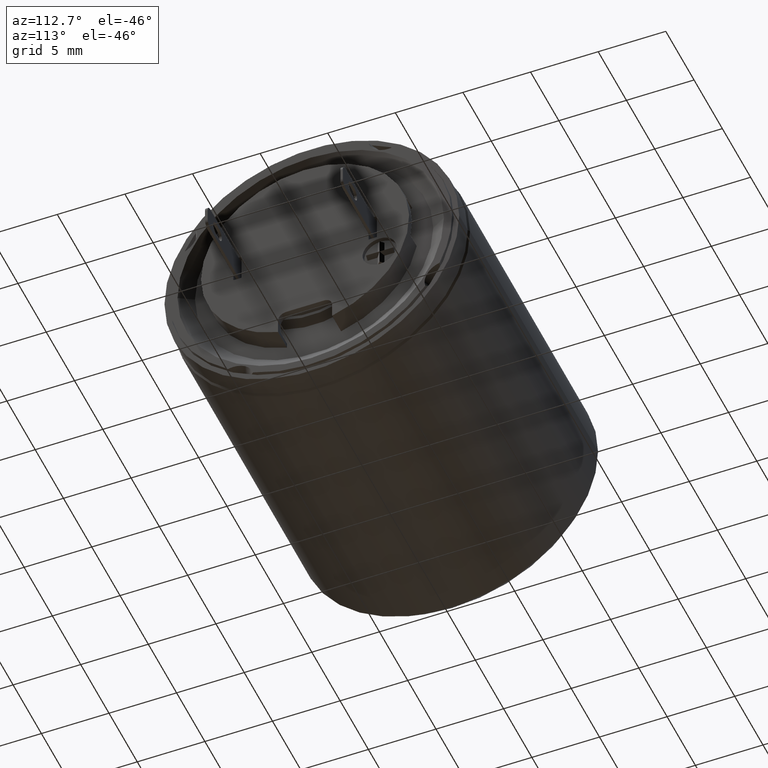
[diagram: clean part render]
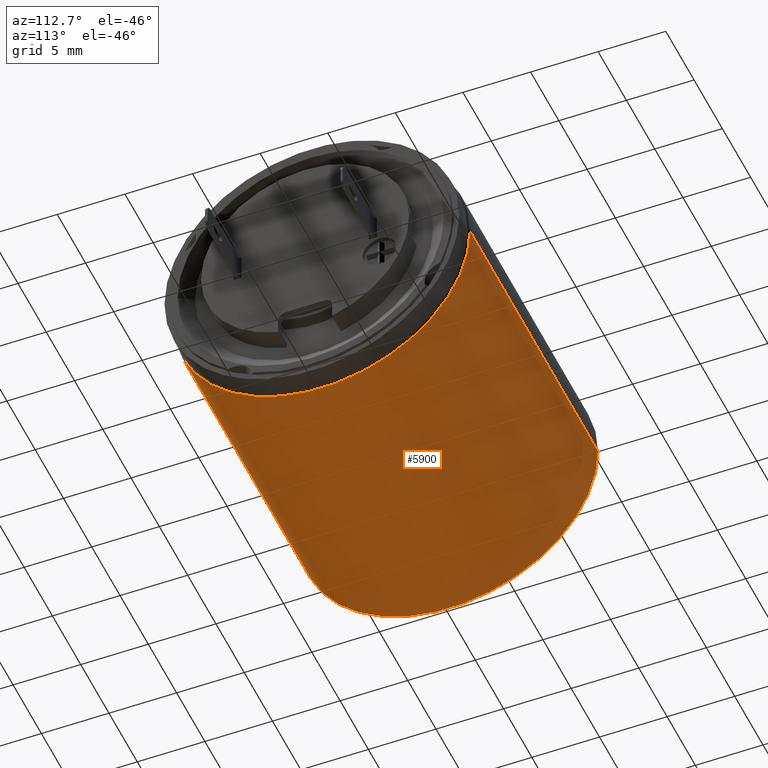
[diagram: same view with one face highlighted and labeled with its STEP entity id]
A machine part, auxiliary view. The second image highlights one B-rep face of the part: STEP entity #5900.
In plain terms, the highlighted cylindrical surface (partial cylindrical patch) has radius 11 mm, axis along (-1, 0, 0).
Its self-contained STEP definition (entity closure, byte-faithful):
#412=CARTESIAN_POINT('',(6.3E0,1.147494050803E-14,0.E0));
#413=DIRECTION('',(-1.E0,0.E0,0.E0));
#414=DIRECTION('',(0.E0,-9.800494599810E-1,-1.987537571746E-1));
#415=AXIS2_PLACEMENT_3D('',#412,#413,#414);
#417=DIRECTION('',(1.E0,-6.033666363858E-12,-1.401118055987E-10));
#418=VECTOR('',#417,9.267949192431E-1);
#419=CARTESIAN_POINT('',(6.3E0,-1.099999999999E1,3.170326124808E-10));
#420=LINE('',#419,#418);
#421=CARTESIAN_POINT('',(7.226794919243E0,1.136144086489E-14,0.E0));
#422=DIRECTION('',(1.E0,0.E0,0.E0));
#423=DIRECTION('',(0.E0,-1.E0,6.806498663983E-11));
#424=AXIS2_PLACEMENT_3D('',#421,#422,#423);
#426=DIRECTION('',(-1.E0,-5.617945267153E-13,-1.924549042033E-11));
#427=VECTOR('',#426,2.262679491926E1);
#428=CARTESIAN_POINT('',(7.226794919243E0,1.1E1,0.E0));
#429=LINE('',#428,#427);
#430=CARTESIAN_POINT('',(-1.54E1,1.413242406229E-14,0.E0));
#431=DIRECTION('',(-1.E0,0.E0,0.E0));
#432=DIRECTION('',(0.E0,1.E0,0.E0));
#433=AXIS2_PLACEMENT_3D('',#430,#431,#432);
#435=DIRECTION('',(1.E0,-7.103337525973E-12,-2.415448619505E-10));
#436=VECTOR('',#435,1.700000000012E0);
#437=CARTESIAN_POINT('',(-1.540000000001E1,-1.099999999999E1,
4.354631287217E-10));
#438=LINE('',#437,#436);
#439=CARTESIAN_POINT('',(-1.37E1,1.392423410643E-14,0.E0));
#440=DIRECTION('',(-1.E0,0.E0,0.E0));
#441=DIRECTION('',(0.E0,-9.800494599810E-1,-1.987537571746E-1));
#442=AXIS2_PLACEMENT_3D('',#439,#440,#441);
#444=CARTESIAN_POINT('',(-1.37E1,-1.078054401027E1,-2.186291572366E0));
#445=CARTESIAN_POINT('',(-1.37E1,-1.077303840707E1,-2.223301488091E0));
#446=CARTESIAN_POINT('',(-1.369122777280E1,-1.075805160692E1,
-2.295270795702E0));
#447=CARTESIAN_POINT('',(-1.365396774176E1,-1.073532049370E1,
-2.399247362835E0));
#448=CARTESIAN_POINT('',(-1.359445422115E1,-1.071393522627E1,
-2.492829306671E0));
#449=CARTESIAN_POINT('',(-1.351472409723E1,-1.069553040360E1,
-2.570456608253E0));
#450=CARTESIAN_POINT('',(-1.341888911486E1,-1.068141639113E1,
-2.628328697791E0));
#451=CARTESIAN_POINT('',(-1.331201966995E1,-1.067235325417E1,
-2.664782441758E0));
#452=CARTESIAN_POINT('',(-1.323805207597E1,-1.067019286007E1,
-2.673384433526E0));
#453=CARTESIAN_POINT('',(-1.320000004937E1,-1.067019286007E1,
-2.673384433526E0));
#455=DIRECTION('',(-1.E0,4.641152885953E-12,1.141402743809E-12));
#456=VECTOR('',#455,1.900000029915E1);
#457=CARTESIAN_POINT('',(5.800000249776E0,-1.067019286016E1,-2.673384433548E0));
#458=LINE('',#457,#456);
#459=CARTESIAN_POINT('',(5.800000249776E0,-1.067019286016E1,-2.673384433548E0));
#460=CARTESIAN_POINT('',(5.837782454909E0,-1.067019286016E1,-2.673384433548E0));
#461=CARTESIAN_POINT('',(5.911334090510E0,-1.067232535492E1,-2.664893100808E0));
#462=CARTESIAN_POINT('',(6.017816937235E0,-1.068129667349E1,-2.628813267514E0));
#463=CARTESIAN_POINT('',(6.113891492025E0,-1.069537376826E1,-2.571107354907E0));
#464=CARTESIAN_POINT('',(6.193783634154E0,-1.071374589513E1,-2.493639422147E0));
#465=CARTESIAN_POINT('',(6.253469215614E0,-1.073508750392E1,-2.400290265237E0));
#466=CARTESIAN_POINT('',(6.291114240095E0,-1.075791121901E1,-2.295937423909E0));
#467=CARTESIAN_POINT('',(6.3E0,-1.077298519130E1,-2.223563904599E0));
#468=CARTESIAN_POINT('',(6.3E0,-1.078054405022E1,-2.186291375982E0));
#4246=CARTESIAN_POINT('',(7.226794919243E0,1.1E1,0.E0));
#4247=VERTEX_POINT('',#4246);
#4248=CARTESIAN_POINT('',(7.226794919243E0,-1.1E1,1.871777029259E-10));
#4249=VERTEX_POINT('',#4248);
#4250=CARTESIAN_POINT('',(-1.54E1,1.1E1,0.E0));
#4251=CARTESIAN_POINT('',(-1.54E1,-1.1E1,0.E0));
#4252=VERTEX_POINT('',#4250);
#4253=VERTEX_POINT('',#4251);
#5127=CARTESIAN_POINT('',(6.3E0,-1.1E1,2.330473591886E-10));
#5128=VERTEX_POINT('',#5127);
#5129=CARTESIAN_POINT('',(-1.37E1,-1.1E1,1.826272466588E-11));
#5130=VERTEX_POINT('',#5129);
#5131=CARTESIAN_POINT('',(6.3E0,-1.078054405979E1,-2.186291328921E0));
#5132=VERTEX_POINT('',#5131);
#5133=VERTEX_POINT('',#459);
#5134=CARTESIAN_POINT('',(-1.320000004937E1,-1.067019286007E1,
-2.673384433526E0));
#5135=VERTEX_POINT('',#5134);
#5136=VERTEX_POINT('',#444);
#5874=CARTESIAN_POINT('',(7.679330817628E0,1.130602120094E-14,0.E0));
#5875=DIRECTION('',(-1.E0,0.E0,0.E0));
#5876=DIRECTION('',(0.E0,1.E0,0.E0));
#5877=AXIS2_PLACEMENT_3D('',#5874,#5875,#5876);
#5878=CYLINDRICAL_SURFACE('',#5877,1.1E1);
#5880=ORIENTED_EDGE('',*,*,#5879,.T.);
#5882=ORIENTED_EDGE('',*,*,#5881,.T.);
#5884=ORIENTED_EDGE('',*,*,#5883,.T.);
#5886=ORIENTED_EDGE('',*,*,#5885,.T.);
#5887=ORIENTED_EDGE('',*,*,#5868,.T.);
#5889=ORIENTED_EDGE('',*,*,#5888,.T.);
#5891=ORIENTED_EDGE('',*,*,#5890,.F.);
#5893=ORIENTED_EDGE('',*,*,#5892,.T.);
#5895=ORIENTED_EDGE('',*,*,#5894,.F.);
#5897=ORIENTED_EDGE('',*,*,#5896,.T.);
#5898=EDGE_LOOP('',(#5880,#5882,#5884,#5886,#5887,#5889,#5891,#5893,#5895,
#5897));
#5899=FACE_OUTER_BOUND('',#5898,.F.);
#5900=ADVANCED_FACE('',(#5899),#5878,.T.);
#416=CIRCLE('',#415,1.1E1);
#425=CIRCLE('',#424,1.1E1);
#434=CIRCLE('',#433,1.1E1);
#443=CIRCLE('',#442,1.1E1);
#454=B_SPLINE_CURVE_WITH_KNOTS('',3,(#444,#445,#446,#447,#448,#449,#450,#451,
#452,#453),.UNSPECIFIED.,.F.,.F.,(4,1,1,1,1,1,1,4),(0.E0,1.428571428571E-1,
2.857142857143E-1,4.285714285714E-1,5.714285714286E-1,7.142857142857E-1,
8.571428571429E-1,1.E0),.UNSPECIFIED.);
#469=B_SPLINE_CURVE_WITH_KNOTS('',3,(#459,#460,#461,#462,#463,#464,#465,#466,
#467,#468),.UNSPECIFIED.,.F.,.F.,(4,1,1,1,1,1,1,4),(0.E0,1.428571428571E-1,
2.857142857143E-1,4.285714285714E-1,5.714285714286E-1,7.142857142857E-1,
8.571428571429E-1,1.E0),.UNSPECIFIED.);
#5868=EDGE_CURVE('',#4252,#4253,#434,.T.);
#5879=EDGE_CURVE('',#5132,#5128,#416,.T.);
#5881=EDGE_CURVE('',#5128,#4249,#420,.T.);
#5883=EDGE_CURVE('',#4249,#4247,#425,.T.);
#5885=EDGE_CURVE('',#4247,#4252,#429,.T.);
#5888=EDGE_CURVE('',#4253,#5130,#438,.T.);
#5890=EDGE_CURVE('',#5136,#5130,#443,.T.);
#5892=EDGE_CURVE('',#5136,#5135,#454,.T.);
#5894=EDGE_CURVE('',#5133,#5135,#458,.T.);
#5896=EDGE_CURVE('',#5133,#5132,#469,.T.);